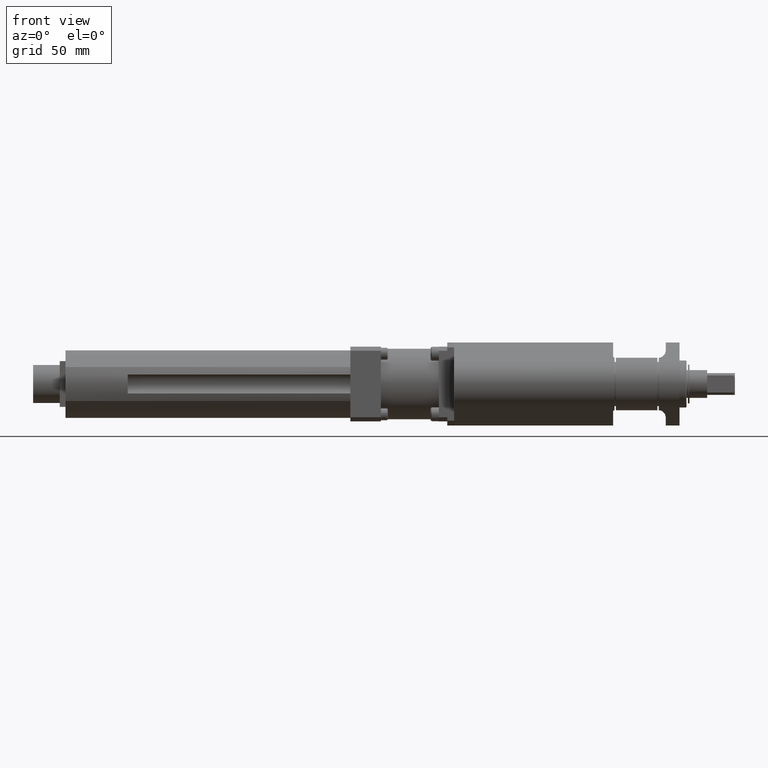
[diagram: clean part render]
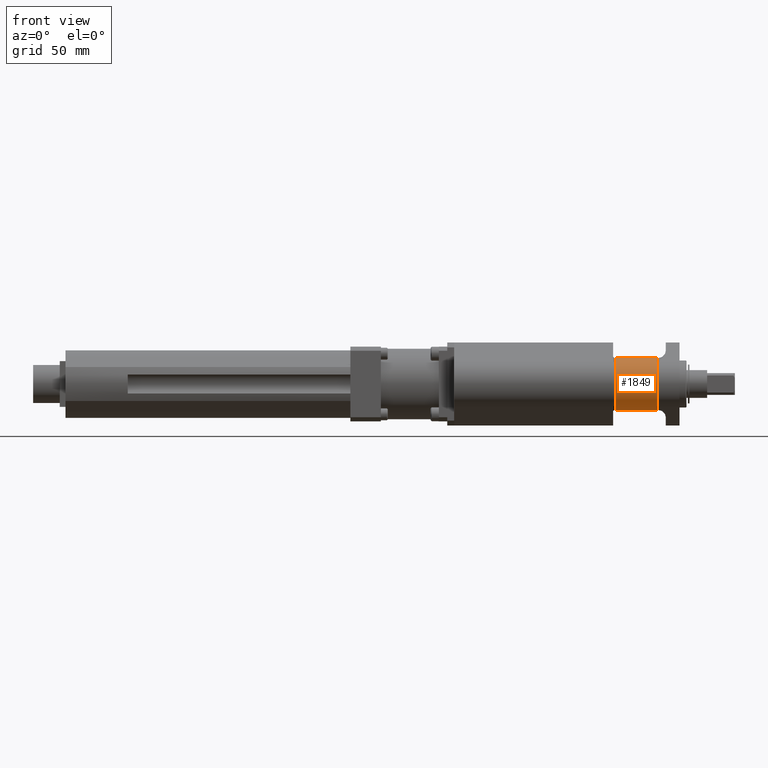
[diagram: same view with one face highlighted and labeled with its STEP entity id]
A machine part, front view. The second image highlights one B-rep face of the part: STEP entity #1849.
In plain terms, the highlighted cylindrical surface (edge-blend (fillet) strip) has radius 19 mm, axis along (1, -0, -0).
Its self-contained STEP definition (entity closure, byte-faithful):
#3 = CARTESIAN_POINT ( 'NONE',  ( -16.00000000000000000, 0.0000000000000000000, -19.00000000000000400 ) ) ;
#423 = DIRECTION ( 'NONE',  ( -1.000000000000000000, 0.0000000000000000000, 0.0000000000000000000 ) ) ;
#646 = ORIENTED_EDGE ( 'NONE', *, *, #7106, .T. ) ;
#1065 = CARTESIAN_POINT ( 'NONE',  ( -46.00000000000000000, 2.326828918379971400E-015, 19.00000000000000400 ) ) ;
#1807 = CARTESIAN_POINT ( 'NONE',  ( -16.00000000000000000, 0.0000000000000000000, 0.0000000000000000000 ) ) ;
#1849 = ADVANCED_FACE ( 'NONE', ( #3977 ), #9444, .T. ) ;
#2214 = CARTESIAN_POINT ( 'NONE',  ( -46.00000000000000000, 0.0000000000000000000, -19.00000000000000400 ) ) ;
#2485 = VECTOR ( 'NONE', #9601, 1000.000000000000000 ) ;
#2722 = VECTOR ( 'NONE', #8438, 1000.000000000000000 ) ;
#3550 = DIRECTION ( 'NONE',  ( 0.0000000000000000000, 0.0000000000000000000, 1.000000000000000000 ) ) ;
#3853 = VERTEX_POINT ( 'NONE', #1065 ) ;
#3960 = CARTESIAN_POINT ( 'NONE',  ( -16.00000000000000000, 2.326828918379971400E-015, 19.00000000000000400 ) ) ;
#3977 = FACE_OUTER_BOUND ( 'NONE', #8669, .T. ) ;
#4628 = ORIENTED_EDGE ( 'NONE', *, *, #8684, .F. ) ;
#4914 = DIRECTION ( 'NONE',  ( -1.000000000000000000, 0.0000000000000000000, 0.0000000000000000000 ) ) ;
#5359 = EDGE_CURVE ( 'NONE', #10048, #9239, #12352, .T. ) ;
#6285 = CARTESIAN_POINT ( 'NONE',  ( -46.00000000000000000, 0.0000000000000000000, 0.0000000000000000000 ) ) ;
#7106 = EDGE_CURVE ( 'NONE', #9239, #11202, #8283, .T. ) ;
#7456 = AXIS2_PLACEMENT_3D ( 'NONE', #10362, #11089, #9717 ) ;
#7692 = ORIENTED_EDGE ( 'NONE', *, *, #12268, .F. ) ;
#8283 = CIRCLE ( 'NONE', #9719, 19.00000000000000400 ) ;
#8300 = ORIENTED_EDGE ( 'NONE', *, *, #5359, .T. ) ;
#8438 = DIRECTION ( 'NONE',  ( 1.000000000000000000, -0.0000000000000000000, -0.0000000000000000000 ) ) ;
#8669 = EDGE_LOOP ( 'NONE', ( #4628, #7692, #8300, #646 ) ) ;
#8684 = EDGE_CURVE ( 'NONE', #3853, #11202, #11182, .T. ) ;
#9239 = VERTEX_POINT ( 'NONE', #3 ) ;
#9444 = CYLINDRICAL_SURFACE ( 'NONE', #7456, 19.00000000000000400 ) ;
#9601 = DIRECTION ( 'NONE',  ( 1.000000000000000000, -0.0000000000000000000, -0.0000000000000000000 ) ) ;
#9717 = DIRECTION ( 'NONE',  ( 0.0000000000000000000, 0.0000000000000000000, -1.000000000000000000 ) ) ;
#9719 = AXIS2_PLACEMENT_3D ( 'NONE', #1807, #423, #12487 ) ;
#9816 = CARTESIAN_POINT ( 'NONE',  ( -46.00000000000000000, 2.326828918379971400E-015, 19.00000000000000400 ) ) ;
#9959 = CIRCLE ( 'NONE', #12395, 19.00000000000000400 ) ;
#10048 = VERTEX_POINT ( 'NONE', #2214 ) ;
#10362 = CARTESIAN_POINT ( 'NONE',  ( -46.00000000000000000, 0.0000000000000000000, 0.0000000000000000000 ) ) ;
#10983 = CARTESIAN_POINT ( 'NONE',  ( -46.00000000000000000, 0.0000000000000000000, -19.00000000000000400 ) ) ;
#11089 = DIRECTION ( 'NONE',  ( 1.000000000000000000, -0.0000000000000000000, -0.0000000000000000000 ) ) ;
#11182 = LINE ( 'NONE', #9816, #2722 ) ;
#11202 = VERTEX_POINT ( 'NONE', #3960 ) ;
#12268 = EDGE_CURVE ( 'NONE', #10048, #3853, #9959, .T. ) ;
#12352 = LINE ( 'NONE', #10983, #2485 ) ;
#12395 = AXIS2_PLACEMENT_3D ( 'NONE', #6285, #4914, #3550 ) ;
#12487 = DIRECTION ( 'NONE',  ( 0.0000000000000000000, 0.0000000000000000000, 1.000000000000000000 ) ) ;